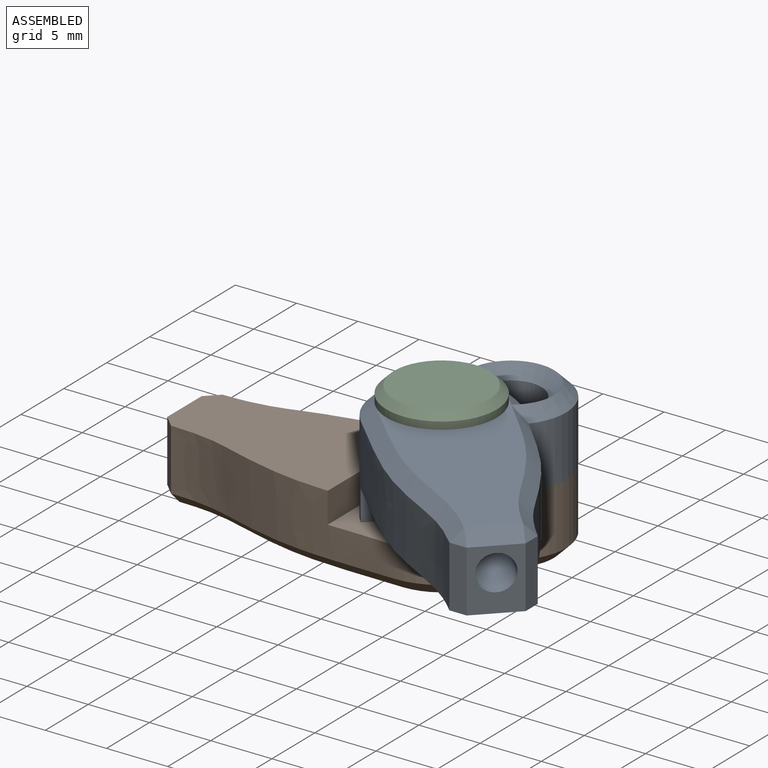
[diagram: assembled view]
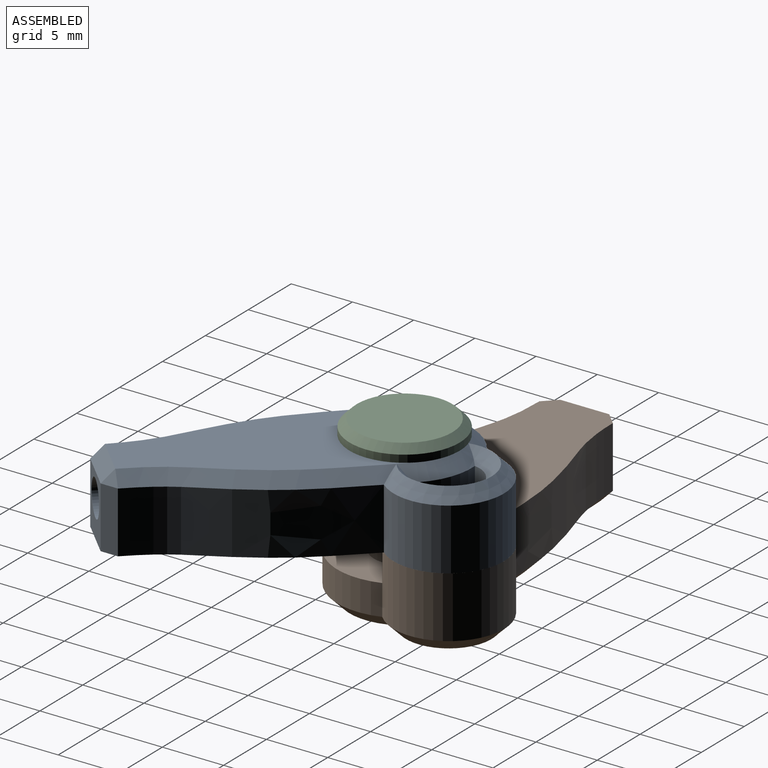
[diagram: assembled view, second angle]
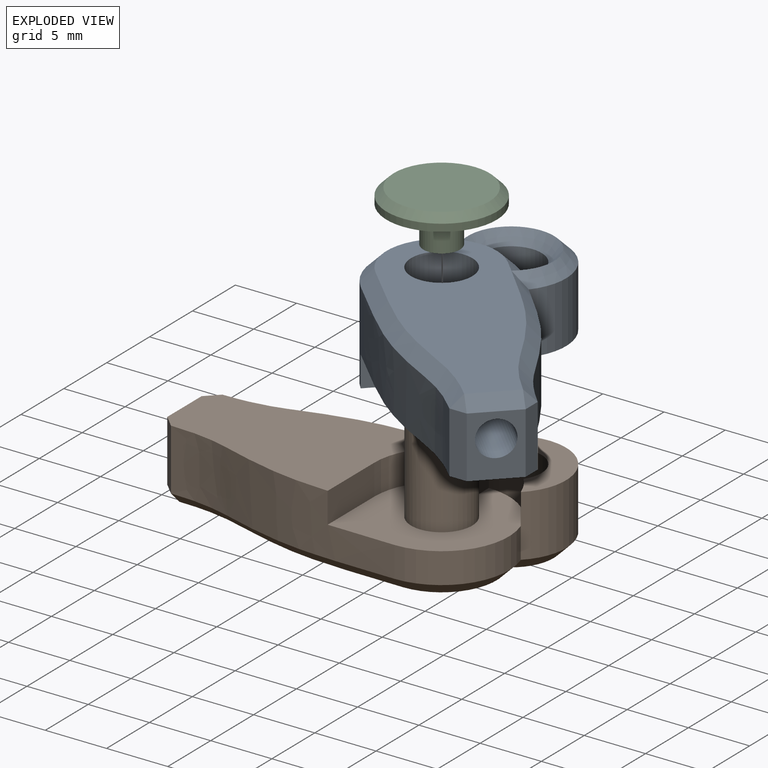
[diagram: exploded view]
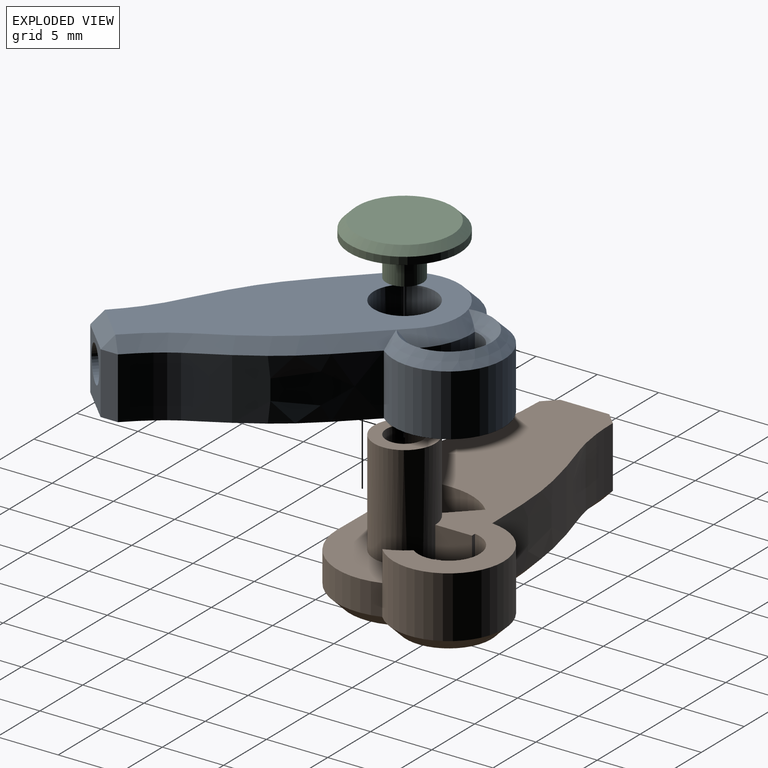
[diagram: exploded view, second angle]
ASSEMBLY  parts=3 mates=2
PART A: 28 faces, bbox 28.4x15.8x9.3 mm
  f0: extruded ~5x0.36mm, area 1.8mm2, adj f1,f5,f13,f17
  f1: cylinder r=5.5mm len=5mm, axis (0,0,-1), area 23.4mm2, adj f0,f5,f13,f18
  f2: plane 25.27x9.77mm, normal (0,0,1), area 155.5mm2, adj f6,f17,f18,f19,f22,f24,f27
  f3: plane 5x4mm, normal (-1,0,0), area 13.4mm2, adj f5,f14,f16,f23,f24
  f4: extruded ~17.62x5mm, area 89.4mm2, adj f5,f12,f23,f27
  f5: plane 27.6x15.08mm, normal (0,0,-1), area 224.2mm2, adj f0,f1,f3,f4,f6,f7,f8,f9
  f6: cylinder r=2.5mm len=8.5mm, axis (0,0,-1), area 104.1mm2, adj f2,f5,f9,f10,f11
  f7: cylinder r=5.5mm len=7.5mm, axis (0,0,-1), area 74mm2, adj f5,f8,f9,f10,f11,f12,f22
  f8: extruded ~20x5mm, area 101.3mm2, adj f5,f7,f16,f19
  f9: plane 3x2.5mm, normal (-1,0,0), area 7.5mm2, adj f5,f6,f7,f11
  f10: plane 3x2.5mm, normal (0,-1,0), area 7.5mm2, adj f5,f6,f7,f11
  f11: plane 5.5x5.5mm, normal (0,0,-1), area 18.8mm2, adj f6,f7,f9,f10
  f12: cylinder r=4.5mm len=8.98mm, axis (0,0,1), area 86.9mm2, adj f4,f5,f7,f25
  f13: cylinder r=2.5mm len=5mm, axis (0,0,1), area 44.9mm2, adj f0,f1,f5,f21
  f14: cylinder r=1.45mm len=15mm, axis (-1,0,0), area 136.7mm2, adj f3,f15
  f15: plane 2.9x2.9mm, normal (-1,0,0), area 6.6mm2, adj f14
  f16: plane 5x1mm, normal (-0.71,0.71,0), area 7.1mm2, adj f3,f5,f8,f20
  f17: bspline ~1.42x1mm, area 1.2mm2, adj f0,f2,f18,f21
  f18: cone r=4.5mm half-angle=45deg, axis (0,0,-1), area 6.8mm2, adj f1,f2,f17,f21
  f19: bspline ~20x3.5mm, area 28.7mm2, adj f2,f8,f20,f22
  f20: plane 1x1mm, normal (-0.58,0.58,0.58), area 0.9mm2, adj f16,f19,f24
  f21: cone r=2.5mm half-angle=45deg, axis (0,0,1), area 16.9mm2, adj f13,f17,f18,f25
  f22: cone r=4.5mm half-angle=45deg, axis (0,0,-1), area 14mm2, adj f2,f7,f19,f25
  f23: plane 5x1mm, normal (-0.71,-0.71,0), area 7.1mm2, adj f3,f4,f5,f26
  f24: plane 4x1mm, normal (-0.71,0,0.71), area 5.7mm2, adj f2,f3,f20,f26
  f25: cone r=3.5mm half-angle=45deg, axis (0,0,-1), area 23.1mm2, adj f12,f21,f22,f27
  f26: plane 1x1mm, normal (-0.58,-0.58,0.58), area 0.9mm2, adj f23,f24,f27
  f27: bspline ~18.65x3.5mm, area 26mm2, adj f2,f4,f25,f26
PART B: 34 faces, bbox 28.4x15.9x12.8 mm
  f0: cylinder r=5.5mm len=4.14mm, axis (0,0,-1), area 11.7mm2, adj f1,f10,f18,f28
  f1: extruded ~5x0.36mm, area 1.8mm2, adj f0,f4,f11,f18,f27
  f2: extruded ~20x5mm, area 87.6mm2, adj f3,f4,f10,f12,f24,f31
  f3: cylinder r=5.5mm len=7.31mm, axis (0,0,-1), area 26.2mm2, adj f2,f10,f19,f33
  f4: plane 27.6x15.08mm, normal (0,0,1), area 170.7mm2, adj f1,f2,f5,f6,f9,f11,f12,f13
  f5: plane 5x4mm, normal (-1,0,0), area 13.4mm2, adj f4,f20,f22,f23,f24
  f6: extruded ~17.62x5mm, area 89.4mm2, adj f4,f19,f22,f29
  f7: plane 25.27x9.77mm, normal (0,0,-1), area 175.1mm2, adj f23,f27,f28,f29,f31,f33
  f8: plane 5x5mm, normal (0,0,1), area 12.6mm2, adj f9,f15
  f9: cylinder r=2.5mm len=8.5mm, axis (0,0,-1), area 128.6mm2, adj f4,f8,f10,f11,f14
  f10: plane 11.77x11.77mm, normal (0,0,1), area 72.3mm2, adj f0,f2,f3,f9,f11,f12,f13,f14
  f11: plane 3x2.5mm, normal (1,0,0), area 7.5mm2, adj f1,f4,f9,f10
  f12: plane 5.44x2.5mm, normal (1,0,0), area 13.6mm2, adj f2,f4,f10,f13
  f13: cylinder r=5.5mm len=3.89mm, axis (0,0,1), area 10.8mm2, adj f4,f10,f12,f14
  f14: plane 2.5x2.12mm, normal (-0.71,-0.71,0), area 7.5mm2, adj f4,f9,f10,f13
  f15: cylinder r=1.5mm len=3mm, axis (0,0,1), area 28.3mm2, adj f8,f16
  f16: plane 3x3mm, normal (0,0,1), area 7.1mm2, adj f15
  f17: cylinder r=5.5mm len=2.5mm, axis (0,0,-1), area 5.3mm2, adj f4,f10,f18,f19
  f18: cylinder r=2.5mm len=5mm, axis (0,0,-1), area 44.9mm2, adj f0,f1,f4,f17,f30
  f19: cylinder r=4.5mm len=8.98mm, axis (0,0,-1), area 86.9mm2, adj f3,f4,f6,f17,f32
  f20: cylinder r=1.45mm len=15mm, axis (-1,0,0), area 136.7mm2, adj f5,f21
  f21: plane 2.9x2.9mm, normal (-1,0,0), area 6.6mm2, adj f20
  f22: plane 5x1mm, normal (-0.71,0.71,0), area 7.1mm2, adj f4,f5,f6,f25
  f23: plane 4x1mm, normal (-0.71,0,-0.71), area 5.7mm2, adj f5,f7,f25,f26
  f24: plane 5x1mm, normal (-0.71,-0.71,0), area 7.1mm2, adj f2,f4,f5,f26
  f25: plane 1x1mm, normal (-0.58,0.58,-0.58), area 0.9mm2, adj f22,f23,f29
  f26: plane 1x1mm, normal (-0.58,-0.58,-0.58), area 0.9mm2, adj f23,f24,f31
  f27: bspline ~1.42x1mm, area 1.2mm2, adj f1,f7,f28,f30
  f28: cone r=5.5mm half-angle=45deg, axis (0,0,1), area 6.8mm2, adj f0,f7,f27,f30
  f29: bspline ~18.65x3.5mm, area 26mm2, adj f6,f7,f25,f32
  f30: cone r=2.5mm half-angle=45deg, axis (0,0,-1), area 16.9mm2, adj f18,f27,f28,f32
  f31: bspline ~20x3.5mm, area 28.7mm2, adj f2,f7,f26,f33
  f32: cone r=3.5mm half-angle=45deg, axis (0,0,1), area 23.1mm2, adj f19,f29,f30,f33
  f33: cone r=5.5mm half-angle=45deg, axis (0,0,1), area 14mm2, adj f3,f7,f31,f32
PART C: 6 faces, bbox 9x9x4.2 mm
  f0: cylinder r=1.5mm len=3mm, axis (0,0,-1), area 28.3mm2, adj f1,f4
  f1: plane 3x3mm, normal (0,0,-1), area 7.1mm2, adj f0
  f2: cylinder r=4.5mm len=9mm, axis (0,0,-1), area 17mm2, adj f4,f5
  f3: plane 7.8x7.8mm, normal (0,0,1), area 47.8mm2, adj f5
  f4: plane 9x9mm, normal (0,0,-1), area 56.5mm2, adj f0,f2
  f5: cone r=3.9mm half-angle=45deg, axis (0,0,-1), area 22.4mm2, adj f2,f3
PLACE A rot(axis=(0,0,1),135deg) t=(-12.51,-39.48,19.79)mm
PLACE B t=(-12.51,-39.48,19.79)mm fixed
PLACE C t=(-12.51,-39.48,19.79)mm
MATE fastened C.f0 <-> B.f15  axis (0,0,-1) through (-12.51,-39.48,28.79)mm
MATE revolute A.f6 <-> B.f9  axis (0,0,1) through (-12.51,-39.48,31.79)mm
